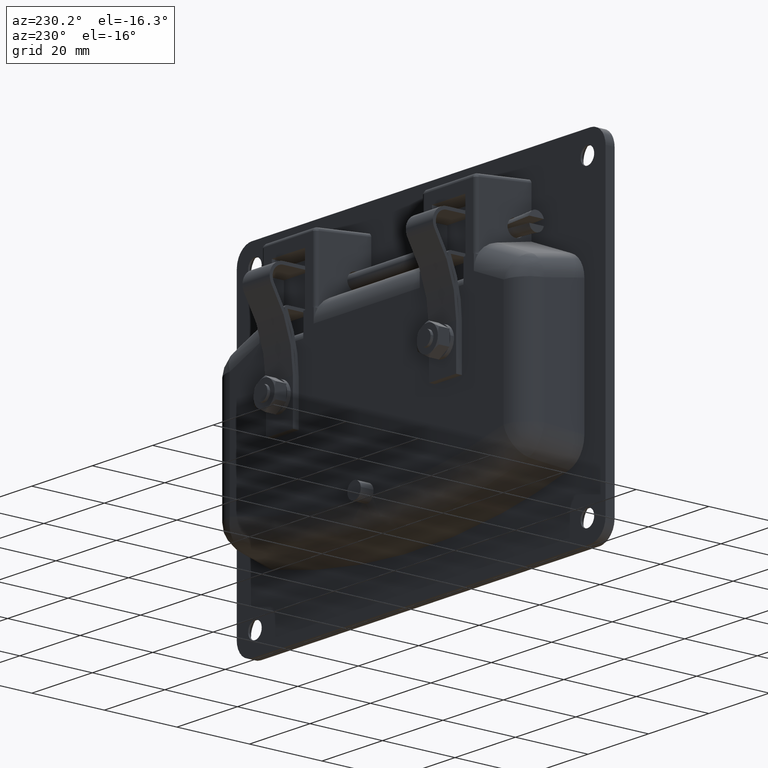
[diagram: clean part render]
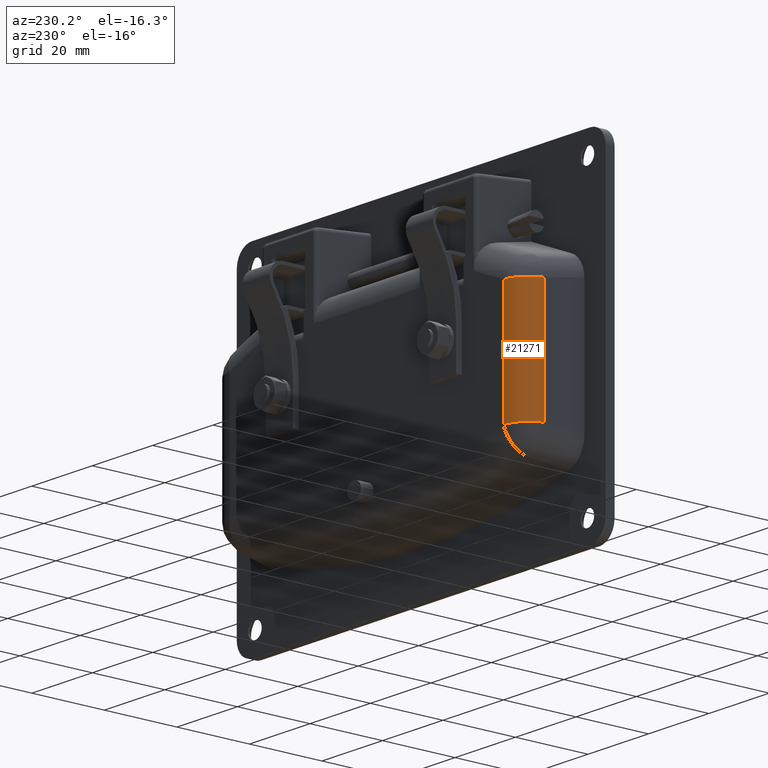
[diagram: same view with one face highlighted and labeled with its STEP entity id]
A machine part, auxiliary view. The second image highlights one B-rep face of the part: STEP entity #21271.
In plain terms, the highlighted face is a freeform B-spline surface patch.
Its self-contained STEP definition (entity closure, byte-faithful):
#21100=CARTESIAN_POINT('',(5.372821035614480,52.125434304676013,-47.512434265152102));
#21101=VERTEX_POINT('',#21100);
#21195=CARTESIAN_POINT('',(11.0,45.261371192773900,-47.512434265152002));
#21196=VERTEX_POINT('',#21195);
#21197=CARTESIAN_POINT('',(5.372821035614469,52.125434304675949,-47.512434265152102));
#21198=CARTESIAN_POINT('',(11.000000000000004,50.999991614605015,-47.512434265152109));
#21199=CARTESIAN_POINT('',(11.0,45.261371192773900,-47.512434265152102));
#21207=(BOUNDED_CURVE()B_SPLINE_CURVE(2,(#21197,#21198,#21199),.UNSPECIFIED.,.F.,.U.)CURVE()GEOMETRIC_REPRESENTATION_ITEM()QUASI_UNIFORM_CURVE()RATIONAL_B_SPLINE_CURVE((1.0,0.773342514931795,1.0))REPRESENTATION_ITEM(''));
#21208=EDGE_CURVE('',#21101,#21196,#21207,.T.);
#21227=CARTESIAN_POINT('',(10.997601274828900,45.078132554618783,-14.691939243646489));
#21228=CARTESIAN_POINT('',(10.997601274828900,45.078132554618783,-48.332946640689748));
#21229=CARTESIAN_POINT('',(11.159717127447557,51.269087193748774,-14.691939243646489));
#21230=CARTESIAN_POINT('',(11.159717127447557,51.269087193748774,-48.332946640689748));
#21231=CARTESIAN_POINT('',(5.034665877907287,52.184482236307304,-14.691939243646489));
#21232=CARTESIAN_POINT('',(5.034665877907287,52.184482236307304,-48.332946640689748));
#21240=(BOUNDED_SURFACE()B_SPLINE_SURFACE(1,2,((#21227,#21229,#21231),(#21228,#21230,#21232)),.UNSPECIFIED.,.F.,.F.,.U.)B_SPLINE_SURFACE_WITH_KNOTS((2,2),(3,3),(0.0,33.641007397043261),(0.0,10.608251043468790),.UNSPECIFIED.)GEOMETRIC_REPRESENTATION_ITEM()RATIONAL_B_SPLINE_SURFACE(((1.0,0.748955720789002,1.0),(1.0,0.748955720789002,1.0)))REPRESENTATION_ITEM('')SURFACE());
#21241=CARTESIAN_POINT('',(5.372821035614480,52.125434304676013,-15.492439122219800));
#21242=VERTEX_POINT('',#21241);
#21243=CARTESIAN_POINT('',(11.0,45.261371192773900,-15.492439122219800));
#21244=VERTEX_POINT('',#21243);
#21245=CARTESIAN_POINT('',(5.372821035614466,52.125434304675949,-15.492439122219800));
#21246=CARTESIAN_POINT('',(11.0,50.999991614605030,-15.492439122219805));
#21247=CARTESIAN_POINT('',(11.0,45.261371192773900,-15.492439122219800));
#21255=(BOUNDED_CURVE()B_SPLINE_CURVE(2,(#21245,#21246,#21247),.UNSPECIFIED.,.F.,.U.)CURVE()GEOMETRIC_REPRESENTATION_ITEM()QUASI_UNIFORM_CURVE()RATIONAL_B_SPLINE_CURVE((1.0,0.773342514931795,1.0))REPRESENTATION_ITEM(''));
#21256=EDGE_CURVE('',#21242,#21244,#21255,.T.);
#21257=ORIENTED_EDGE('',*,*,#21256,.T.);
#21258=CARTESIAN_POINT('',(11.0,45.261371192773900,-47.512434265152002));
#21259=CARTESIAN_POINT('',(11.0,45.261371192773900,-15.492439122219800));
#21260=QUASI_UNIFORM_CURVE('',1,(#21258,#21259),.UNSPECIFIED.,.F.,.U.);
#21261=EDGE_CURVE('',#21196,#21244,#21260,.T.);
#21262=ORIENTED_EDGE('',*,*,#21261,.F.);
#21263=ORIENTED_EDGE('',*,*,#21208,.F.);
#21264=CARTESIAN_POINT('',(5.372821035614480,52.125434304676013,-15.492439122219800));
#21265=CARTESIAN_POINT('',(5.372821035614480,52.125434304676013,-47.512434265152102));
#21266=QUASI_UNIFORM_CURVE('',1,(#21264,#21265),.UNSPECIFIED.,.F.,.U.);
#21267=EDGE_CURVE('',#21242,#21101,#21266,.T.);
#21268=ORIENTED_EDGE('',*,*,#21267,.F.);
#21269=EDGE_LOOP('',(#21257,#21262,#21263,#21268));
#21270=FACE_OUTER_BOUND('',#21269,.T.);
#21271=ADVANCED_FACE('',(#21270),#21240,.T.);